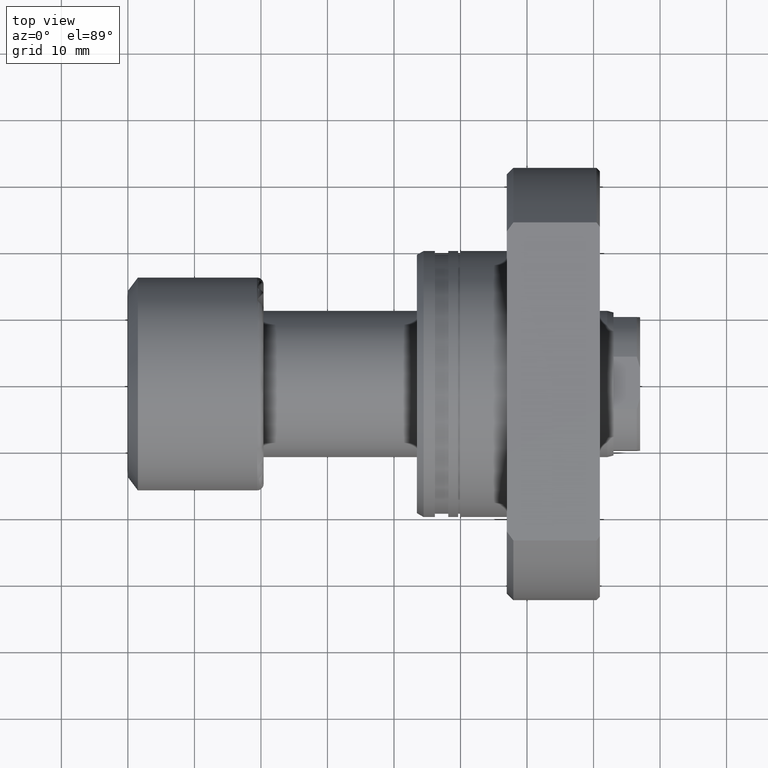
[diagram: clean part render]
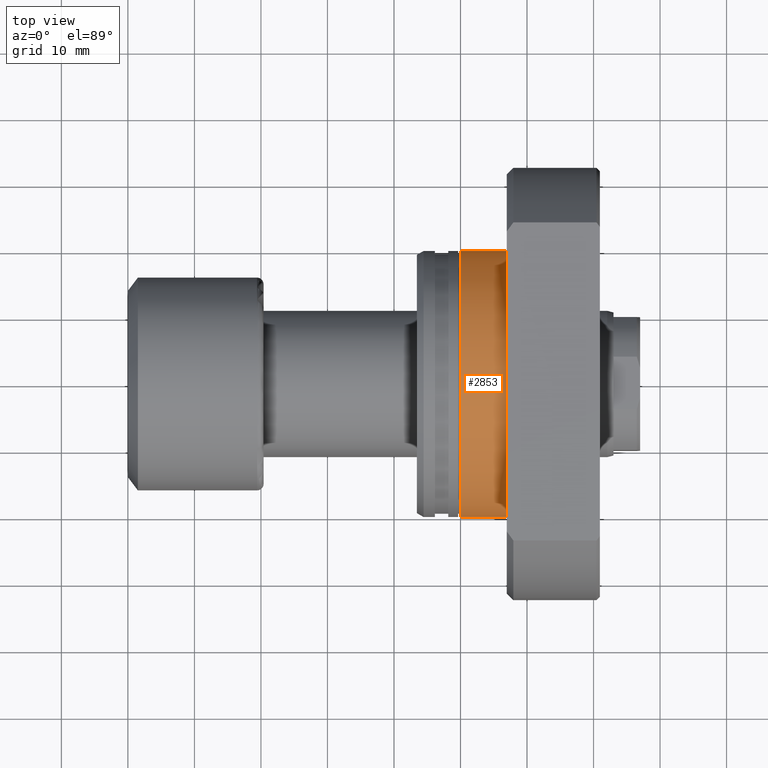
[diagram: same view with one face highlighted and labeled with its STEP entity id]
A machine part, top view. The second image highlights one B-rep face of the part: STEP entity #2853.
In plain terms, the highlighted cylindrical surface (partial cylindrical patch) has radius 20 mm, axis along (1, 0, 0).
Its self-contained STEP definition (entity closure, byte-faithful):
#64 = DIRECTION ( 'NONE',  ( 1.000000000000000000, 1.335978326342566810E-17, -0.000000000000000000 ) ) ;
#150 = AXIS2_PLACEMENT_3D ( 'NONE', #2727, #2278, #2020 ) ;
#167 = VERTEX_POINT ( 'NONE', #2412 ) ;
#193 = VERTEX_POINT ( 'NONE', #1201 ) ;
#216 = EDGE_CURVE ( 'NONE', #1052, #167, #2709, .T. ) ;
#344 = CARTESIAN_POINT ( 'NONE',  ( 27.50000000000000355, 3.673940397442059375E-16, 0.000000000000000000 ) ) ;
#588 = EDGE_CURVE ( 'NONE', #167, #193, #3157, .T. ) ;
#752 = EDGE_LOOP ( 'NONE', ( #2794, #2610, #2307, #1909 ) ) ;
#809 = DIRECTION ( 'NONE',  ( 0.000000000000000000, 1.000000000000000000, 0.000000000000000000 ) ) ;
#871 = AXIS2_PLACEMENT_3D ( 'NONE', #1163, #2914, #2200 ) ;
#944 = CARTESIAN_POINT ( 'NONE',  ( 27.50000000000000355, 19.99999999999999645, 0.000000000000000000 ) ) ;
#1019 = VERTEX_POINT ( 'NONE', #2557 ) ;
#1052 = VERTEX_POINT ( 'NONE', #2390 ) ;
#1163 = CARTESIAN_POINT ( 'NONE',  ( 13.50000000000000355, 1.803570740562465471E-16, 0.000000000000000000 ) ) ;
#1201 = CARTESIAN_POINT ( 'NONE',  ( 13.50000000000000355, -19.99999999999999645, 2.449293598294706119E-15 ) ) ;
#1394 = AXIS2_PLACEMENT_3D ( 'NONE', #344, #64, #809 ) ;
#1462 = LINE ( 'NONE', #2487, #3220 ) ;
#1909 = ORIENTED_EDGE ( 'NONE', *, *, #216, .F. ) ;
#1919 = DIRECTION ( 'NONE',  ( 1.000000000000000000, 1.335978326342566810E-17, -0.000000000000000000 ) ) ;
#2020 = DIRECTION ( 'NONE',  ( 0.000000000000000000, 1.000000000000000000, 0.000000000000000000 ) ) ;
#2082 = CYLINDRICAL_SURFACE ( 'NONE', #1394, 19.99999999999999645 ) ;
#2200 = DIRECTION ( 'NONE',  ( 0.000000000000000000, 1.000000000000000000, 0.000000000000000000 ) ) ;
#2278 = DIRECTION ( 'NONE',  ( 1.000000000000000000, 1.335978326342566810E-17, -0.000000000000000000 ) ) ;
#2307 = ORIENTED_EDGE ( 'NONE', *, *, #588, .F. ) ;
#2312 = EDGE_CURVE ( 'NONE', #1052, #1019, #2588, .T. ) ;
#2390 = CARTESIAN_POINT ( 'NONE',  ( 6.499999999999783284, 19.99999999999999645, 0.000000000000000000 ) ) ;
#2412 = CARTESIAN_POINT ( 'NONE',  ( 13.50000000000000355, 19.99999999999999645, 0.000000000000000000 ) ) ;
#2487 = CARTESIAN_POINT ( 'NONE',  ( 27.50000000000000355, -19.99999999999999645, 2.449293598294706119E-15 ) ) ;
#2557 = CARTESIAN_POINT ( 'NONE',  ( 6.499999999999783284, -19.99999999999999645, 2.449293598294706119E-15 ) ) ;
#2588 = CIRCLE ( 'NONE', #150, 19.99999999999999645 ) ;
#2610 = ORIENTED_EDGE ( 'NONE', *, *, #2695, .T. ) ;
#2695 = EDGE_CURVE ( 'NONE', #1019, #193, #1462, .T. ) ;
#2709 = LINE ( 'NONE', #944, #2886 ) ;
#2727 = CARTESIAN_POINT ( 'NONE',  ( 6.499999999999783284, 8.683859121226395531E-17, 0.000000000000000000 ) ) ;
#2760 = DIRECTION ( 'NONE',  ( 1.000000000000000000, 1.335978326342566810E-17, -0.000000000000000000 ) ) ;
#2794 = ORIENTED_EDGE ( 'NONE', *, *, #2312, .T. ) ;
#2853 = ADVANCED_FACE ( 'NONE', ( #3078 ), #2082, .T. ) ;
#2886 = VECTOR ( 'NONE', #1919, 1000.000000000000000 ) ;
#2914 = DIRECTION ( 'NONE',  ( 1.000000000000000000, 1.335978326342566810E-17, -0.000000000000000000 ) ) ;
#3078 = FACE_OUTER_BOUND ( 'NONE', #752, .T. ) ;
#3157 = CIRCLE ( 'NONE', #871, 19.99999999999999645 ) ;
#3220 = VECTOR ( 'NONE', #2760, 1000.000000000000000 ) ;